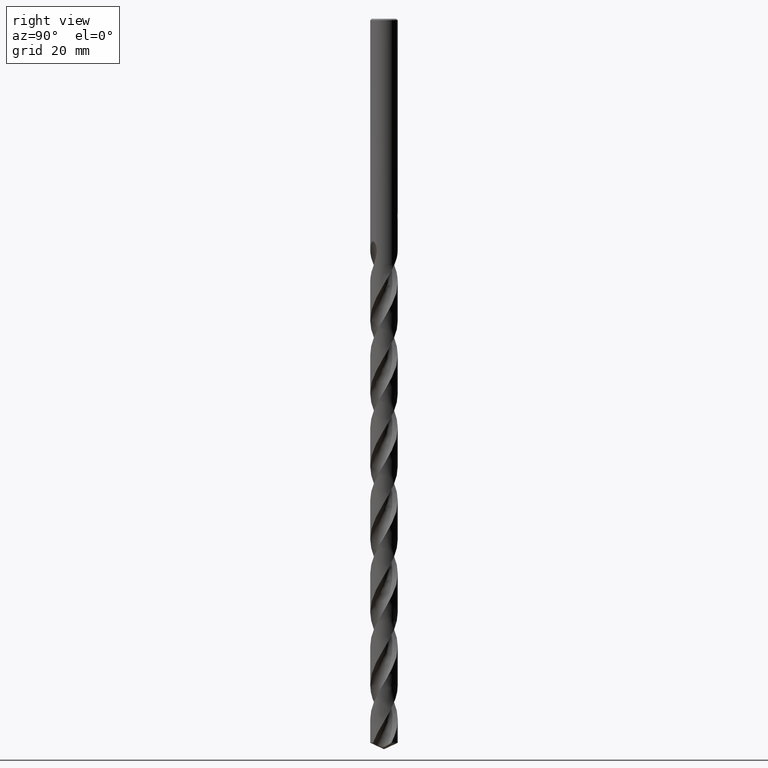
[diagram: clean part render]
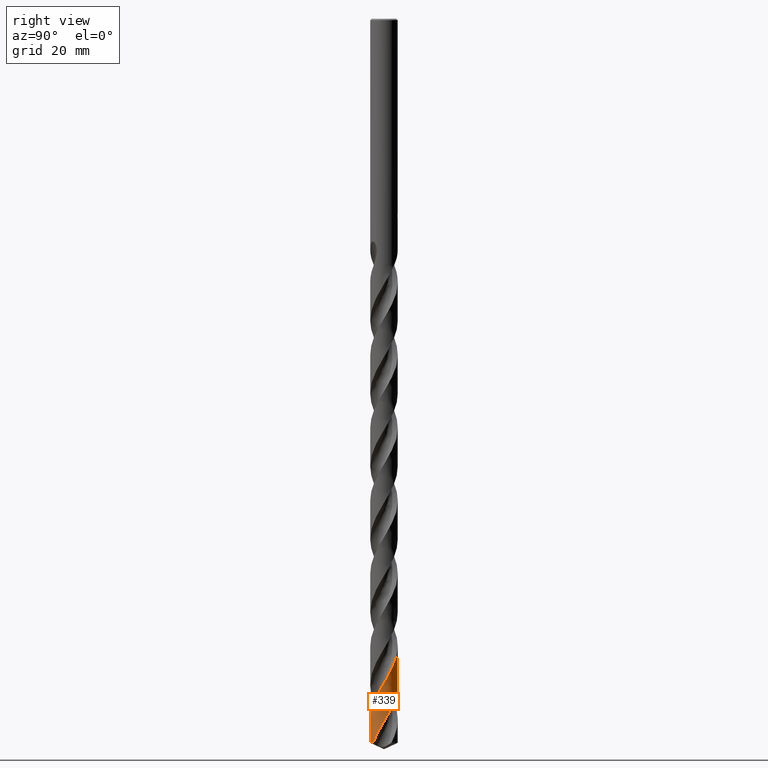
[diagram: same view with one face highlighted and labeled with its STEP entity id]
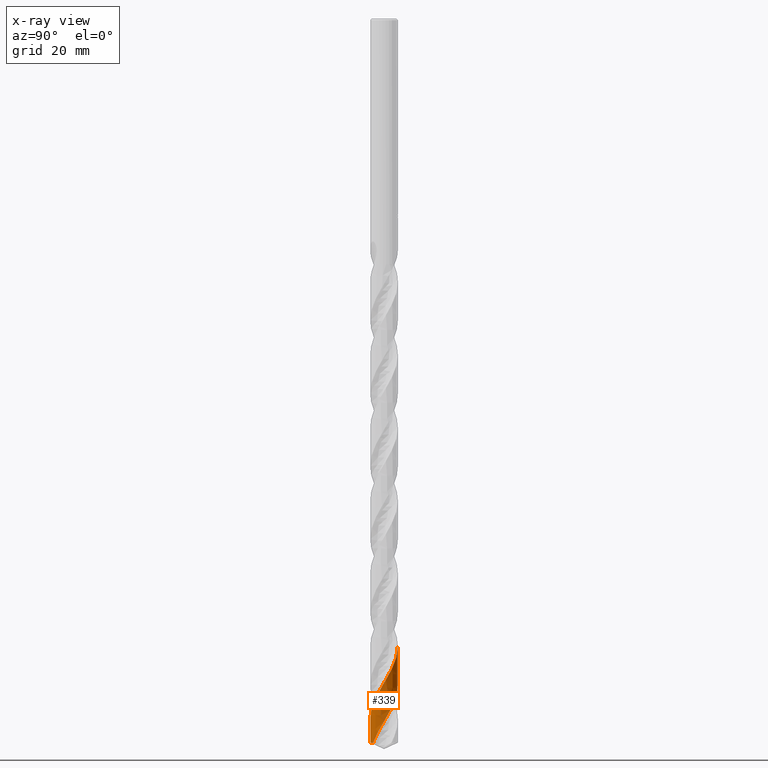
[diagram: x-ray of the same camera — body ghosted, the highlighted face saturated]
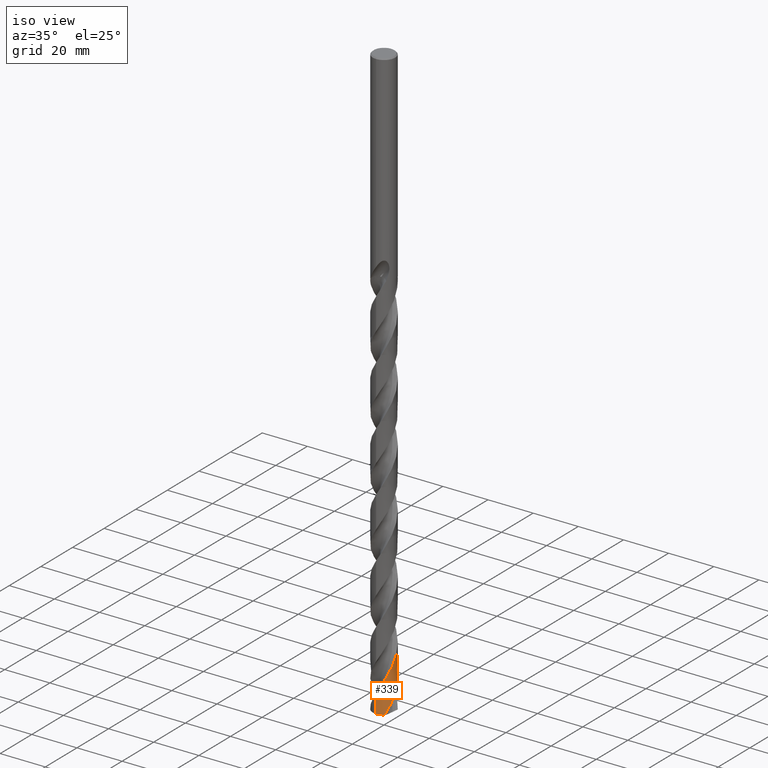
[diagram: same view with one face highlighted and labeled with its STEP entity id]
A machine part, right view. The second image highlights one B-rep face of the part: STEP entity #339.
The next image is the same camera in x-ray: the body ghosted, the highlighted face saturated — about 0% of this face is hidden behind the body in this view.
A second angle (iso view) of the same face is appended — the face is thin or edge-on in the first view.
In plain terms, the highlighted conical surface has half-angle 0 deg.
Its self-contained STEP definition (entity closure, byte-faithful):
#313=VERTEX_POINT('',#885);
#339=ADVANCED_FACE('',(#916),#917,.T.);
#347=EDGE_CURVE('',#663,#551,#925,.T.);
#349=EDGE_CURVE('',#625,#675,#927,.T.);
#389=EDGE_CURVE('',#625,#313,#969,.T.);
#483=EDGE_CURVE('',#663,#313,#1072,.T.);
#551=VERTEX_POINT('',#1148);
#625=VERTEX_POINT('',#1231);
#663=VERTEX_POINT('',#1271);
#675=VERTEX_POINT('',#1284);
#701=EDGE_CURVE('',#551,#675,#1312,.T.);
#885=CARTESIAN_POINT('',(-5.87392020568465E-013,4.99998793215063,-241.710413322431));
#916=FACE_OUTER_BOUND('',#4875,.T.);
#917=CONICAL_SURFACE('',#4876,4.99995,5.75809787312949E-007);
#925=CIRCLE('',#4903,5.0);
#927=B_SPLINE_CURVE_WITH_KNOTS('',3,(#4906,#4907,#4908,#4909,#4910,#4911,#4912,#4913,#4914,#4915,#4916,#4917,#4918,#4919,#4920,#4921,#4922,#4923,#4924,#4925,#4926,#4927,#4928,#4929,#4930,#4931,#4932,#4933,#4934,#4935,#4936,#4937,#4938,#4939,#4940,#4941,#4942,#4943,#4944,#4945,#4946,#4947,#4948,#4949,#4950,#4951,#4952,#4953,#4954,#4955,#4956,#4957,#4958,#4959,#4960,#4961,#4962,#4963,#4964,#4965,#4966,#4967,#4968,#4969,#4970,#4971,#4972,#4973,#4974,#4975,#4976,#4977,#4978,#4979,#4980,#4981,#4982,#4983,#4984,#4985,#4986,#4987,#4988,#4989,#4990,#4991,#4992,#4993,#4994,#4995,#4996,#4997,#4998,#4999,#5000,#5001,#5002,#5003,#5004,#5005,#5006,#5007,#5008,#5009,#5010,#5011,#5012,#5013,#5014,#5015,#5016,#5017,#5018,#5019,#5020,#5021,#5022,#5023,#5024,#5025,#5026,#5027,#5028,#5029,#5030,#5031,#5032,#5033,#5034,#5035,#5036,#5037,#5038,#5039,#5040,#5041,#5042,#5043,#5044,#5045,#5046,#5047,#5048,#5049,#5050,#5051,#5052,#5053,#5054,#5055,#5056,#5057,#5058,#5059,#5060,#5061,#5062,#5063,#5064,#5065,#5066,#5067,#5068,#5069,#5070,#5071,#5072,#5073,#5074,#5075,#5076,#5077,#5078,#5079,#5080,#5081,#5082,#5083,#5084,#5085,#5086,#5087,#5088,#5089,#5090,#5091,#5092,#5093,#5094,#5095,#5096,#5097,#5098,#5099,#5100,#5101,#5102,#5103,#5104,#5105,#5106,#5107,#5108,#5109,#5110,#5111,#5112,#5113,#5114,#5115,#5116,#5117,#5118,#5119,#5120,#5121,#5122,#5123,#5124,#5125,#5126,#5127,#5128,#5129,#5130,#5131,#5132,#5133,#5134,#5135,#5136,#5137,#5138,#5139,#5140,#5141,#5142,#5143,#5144,#5145,#5146,#5147,#5148,#5149,#5150,#5151,#5152,#5153,#5154,#5155,#5156,#5157,#5158,#5159,#5160,#5161,#5162,#5163,#5164,#5165,#5166,#5167,#5168,#5169,#5170,#5171,#5172,#5173,#5174,#5175,#5176,#5177,#5178,#5179,#5180,#5181,#5182,#5183,#5184,#5185,#5186,#5187,#5188,#5189,#5190,#5191,#5192,#5193,#5194,#5195,#5196,#5197,#5198,#5199,#5200,#5201,#5202,#5203,#5204,#5205,#5206,#5207,#5208,#5209,#5210,#5211),.UNSPECIFIED.,.F.,.F.,(4,2,2,2,2,2,2,2,2,2,2,2,2,2,2,2,2,2,2,2,2,2,2,2,2,2,2,2,2,2,2,2,2,2,2,2,2,2,2,2,2,2,2,2,2,2,2,2,2,2,2,2,2,2,2,2,2,2,2,2,2,2,2,2,2,2,2,2,2,2,2,2,2,2,2,2,2,2,2,2,2,2,2,2,2,2,2,2,2,2,2,2,2,2,2,2,2,2,2,2,2,2,2,2,2,2,2,2,2,2,2,2,2,2,2,2,2,2,2,2,2,2,2,2,2,2,2,2,2,2,2,2,2,2,2,2,2,2,2,2,2,2,2,2,2,2,2,2,2,2,2,2,4),(0.0,0.435718244669395,0.484115058358754,0.509547155672166,0.526948108052865,0.541206287881215,0.554756775117761,0.569361690210161,0.589321679638141,1.23088281591887,1.33036124792312,1.37777474453361,1.41498424339849,1.45565341487665,1.52114544487498,2.23945374253507,2.49490551552909,2.88014624343983,3.05234088393166,3.19027321112109,3.40695112636331,3.71450287752233,4.08795675222742,4.54635631762029,5.6154586405041,6.66358801104034,7.95430692856862,8.88074156269015,9.91010539370236,11.1951891797998,12.2696482439908,12.363952082922,13.8304381564295,14.7238366680834,15.9303035386406,18.1412035731552,19.0159523272185,21.2524735287823,21.6849867942879,23.3120654346752,24.0700652995132,25.0803370115881,27.048186096614,28.1235027824136,30.0531394477758,31.1905202843448,33.1533961631485,34.238585295826,36.1907352092983,37.2891483193302,39.2178325277,40.355858526431,42.3191103328568,43.4026693540429,45.3532242651398,46.45300489638,48.3816255742354,49.5187014856505,51.4820416487001,52.5643974165011,54.5133176604822,55.6145450368524,57.5431920454964,58.6791618008643,60.642504915263,61.7237804901362,63.6710477217583,64.7737666545098,66.702525281252,67.8372423045221,69.8005053352163,70.8808196599829,72.8264205301536,73.9306688504008,75.8596218246577,76.9929454212579,78.9560475791676,80.0355160325098,81.9794420687737,83.0852504914018,85.0144782377346,86.1462735020148,88.1091357249122,89.1878706648457,91.1301179931045,92.2375102075488,94.1670891904594,95.2972294603141,97.2597759128816,98.3378850879144,100.278455477358,101.387446807391,103.317450810369,104.445815596917,106.407972446904,107.485560625961,109.424460623151,110.535058712832,112.465557412411,113.592034971721,115.553731832232,116.630898841482,118.568140209571,119.680344247009,121.611403147042,122.735889986719,124.697058702968,125.773901363608,127.709501253891,128.823301901087,130.75498238407,131.877383638057,133.837959281179,134.914569876875,136.848550488797,137.96392950896,139.89628755998,141.016518646269,142.976439628191,144.052906179797,145.985294661805,147.102225246887,149.035311557212,150.15329761879,152.112504599725,153.188912015202,155.11974070463,156.238187223916,158.172046896295,159.287723297696,161.246161046282,162.322589140616,164.251892295722,165.371813229801,167.306492431198,168.419799194383,170.3773997645,171.453926600902,173.381736985084,174.503178285877,176.438989084359,177.54916554017,179.503943013977,180.584207849557,182.518687522359,183.626550062319,185.528823229327,186.697684240062,189.027023665197,189.428987736049,190.842674362714,191.752328624974,192.670301681998),.UNSPECIFIED.);
#969=LINE('',#6225,#6226);
#1072=B_SPLINE_CURVE_WITH_KNOTS('',3,(#9815,#9816,#9817,#9818,#9819,#9820,#9821,#9822,#9823,#9824,#9825,#9826,#9827,#9828,#9829,#9830,#9831,#9832,#9833,#9834,#9835,#9836,#9837,#9838,#9839,#9840,#9841,#9842,#9843,#9844,#9845,#9846,#9847,#9848,#9849,#9850,#9851,#9852,#9853,#9854,#9855,#9856,#9857,#9858,#9859,#9860,#9861,#9862,#9863,#9864,#9865,#9866,#9867,#9868,#9869,#9870,#9871,#9872,#9873,#9874,#9875,#9876,#9877,#9878,#9879,#9880,#9881,#9882,#9883,#9884,#9885,#9886,#9887,#9888,#9889,#9890,#9891,#9892,#9893,#9894,#9895,#9896,#9897,#9898,#9899,#9900,#9901,#9902,#9903,#9904,#9905,#9906,#9907,#9908,#9909,#9910,#9911,#9912,#9913,#9914,#9915,#9916,#9917,#9918,#9919,#9920,#9921,#9922,#9923,#9924,#9925,#9926,#9927,#9928,#9929,#9930,#9931,#9932,#9933,#9934,#9935,#9936,#9937,#9938,#9939,#9940,#9941,#9942,#9943,#9944,#9945,#9946,#9947,#9948,#9949,#9950,#9951,#9952,#9953,#9954,#9955,#9956,#9957,#9958,#9959,#9960,#9961,#9962,#9963,#9964,#9965,#9966,#9967,#9968,#9969,#9970,#9971,#9972,#9973,#9974,#9975,#9976,#9977,#9978,#9979,#9980,#9981,#9982,#9983,#9984,#9985,#9986,#9987,#9988,#9989,#9990,#9991,#9992,#9993,#9994,#9995,#9996,#9997,#9998,#9999,#10000,#10001,#10002,#10003,#10004,#10005,#10006,#10007,#10008,#10009,#10010,#10011,#10012,#10013,#10014,#10015,#10016,#10017,#10018,#10019,#10020,#10021,#10022,#10023,#10024,#10025,#10026,#10027,#10028,#10029,#10030,#10031,#10032,#10033,#10034,#10035,#10036,#10037,#10038,#10039,#10040,#10041,#10042,#10043,#10044,#10045,#10046,#10047,#10048,#10049,#10050,#10051,#10052,#10053,#10054,#10055,#10056,#10057,#10058,#10059,#10060,#10061,#10062,#10063,#10064,#10065,#10066,#10067,#10068,#10069,#10070,#10071,#10072,#10073,#10074,#10075,#10076,#10077,#10078,#10079,#10080,#10081,#10082,#10083,#10084,#10085,#10086,#10087,#10088,#10089,#10090,#10091,#10092,#10093,#10094,#10095,#10096,#10097,#10098,#10099,#10100,#10101,#10102,#10103,#10104,#10105,#10106,#10107,#10108,#10109,#10110,#10111,#10112),.UNSPECIFIED.,.F.,.F.,(4,2,2,2,2,2,2,2,2,2,2,2,2,2,2,2,2,2,2,2,2,2,2,2,2,2,2,2,2,2,2,2,2,2,2,2,2,2,2,2,2,2,2,2,2,2,2,2,2,2,2,2,2,2,2,2,2,2,2,2,2,2,2,2,2,2,2,2,2,2,2,2,2,2,2,2,2,2,2,2,2,2,2,2,2,2,2,2,2,2,2,2,2,2,2,2,2,2,2,2,2,2,2,2,2,2,2,2,2,2,2,2,2,2,2,2,2,2,2,2,2,2,2,2,2,2,2,2,2,2,2,2,2,2,2,2,2,2,2,2,2,2,2,2,2,2,2,2,4),(0.0,3.63092053248191,3.7691620184671,6.03348487665055,8.0469296444137,9.15530465158286,10.6858725973857,12.3223462129399,14.6102414959239,15.9651958078881,17.0891393279092,18.7346474536644,21.0373664522481,22.8707935806306,23.1939952154213,25.7825353407723,26.5593347333323,28.0407851094805,29.0085748083132,29.7708620923296,31.2488308606676,33.5406915438034,35.0406320416408,36.5310462128202,37.9115202322241,38.590179684919,39.3775294281662,40.8316956697733,41.5858751965656,42.6262510521607,44.1226818348683,46.5754515316867,47.6414510942108,49.9913822828124,51.5039628617097,52.2626833031142,53.7494600441074,55.0190745081184,55.1800763891425,57.57363837445,58.9840166639243,60.3745749894417,61.0956116948758,61.8881703917055,63.3432411834746,65.5898753520117,67.086220845805,68.3850911603997,69.9196985107638,72.7358457748535,73.6413968446596,75.0052332637271,76.3258413891122,78.5725063265606,80.0708949993093,81.5629012316738,83.1145427181494,85.489986877928,86.9362136758373,87.6938126543482,89.1850316896571,91.6811970772674,92.8109871587646,94.1846573257394,95.7403141464202,96.3746999956665,97.5214003578232,99.0794308170751,101.513364658178,102.932405976061,104.467571446549,106.629686497563,106.788899681004,109.197213874844,110.697348350723,112.104209896364,114.284201900323,115.339270466572,117.795484133206,118.731030565162,120.07509376705,121.706440431129,122.801450923436,122.879788960974,125.236096263122,126.706392577401,128.098291368499,130.737580022881,132.143977262708,132.87706205027,134.413429778621,136.74695391876,137.864965954265,140.162534753403,141.52396441993,142.933364300206,144.416862014505,145.671636411232,147.125399294215,148.045149393847,148.812672158692,151.533197267321,152.22664752454,153.835307301096,154.629364073175,155.374698356365,156.870973258538,157.607551531928,158.735363485831,160.07483495405,162.384287609561,163.889378589707,165.267048038706,166.59189438351,167.23348233804,168.37732797623,170.987607724718,171.313003659003,173.930602077886,174.693763401801,176.169113599196,178.477391666545,180.635091058613,180.96408692391,183.550264963447,184.338622818834,187.180907723722,187.259926042525,189.614008985541,190.86979194547,192.364668463624,194.621764592159,195.778551505454,197.663983594507,198.906554845058,199.454322903826,199.852651721785,200.162922504211,200.411371640628,200.681273317122,201.223370648177,201.892062888729,202.00496394292,202.056619043981,202.110331920396,202.190207229054,202.410570028968,202.741458202628,203.482240467201),.UNSPECIFIED.);
#1148=CARTESIAN_POINT('',(6.12434582620796E-016,-5.0,-262.668461709225));
#1231=CARTESIAN_POINT('',(1.37361570398355E-013,4.99997990477998,-227.769402236779));
#1271=CARTESIAN_POINT('',(3.03679725239329,-3.97213575395612,-262.668461709225));
#1284=CARTESIAN_POINT('',(-3.69058589505447E-015,-4.99999513779589,-254.224346619089));
#1312=LINE('',#15235,#15236);
#4875=EDGE_LOOP('',(#18348,#18349,#18350,#18351,#18352));
#4876=AXIS2_PLACEMENT_3D('',#18353,#18354,#18355);
#4903=AXIS2_PLACEMENT_3D('',#18357,#18358,#18359);
#4906=CARTESIAN_POINT('',(3.47531599367033,-3.59460412047406,-89.005));
#4907=CARTESIAN_POINT('',(3.42468505080907,-3.64355496048337,-89.1320228740223));
#4908=CARTESIAN_POINT('',(3.37260652015904,-3.69184736805829,-89.2594740710729));
#4909=CARTESIAN_POINT('',(3.31262006296057,-3.74507875848979,-89.4010412977107));
#4910=CARTESIAN_POINT('',(3.30660280408621,-3.75039263739465,-89.4151869292218));
#4911=CARTESIAN_POINT('',(3.29739019332052,-3.75848883023961,-89.4367588814987));
#4912=CARTESIAN_POINT('',(3.2942109629533,-3.76127566135513,-89.4441878551306));
#4913=CARTESIAN_POINT('',(3.28884637170604,-3.76596608634517,-89.4566972489798));
#4914=CARTESIAN_POINT('',(3.28666428269602,-3.76787061340008,-89.461778284632));
#4915=CARTESIAN_POINT('',(3.2826891079304,-3.77133405851845,-89.4710212872435));
#4916=CARTESIAN_POINT('',(3.28089698623593,-3.77289323456309,-89.4751834057166));
#4917=CARTESIAN_POINT('',(3.27739801450303,-3.7759330169186,-89.4833000321616));
#4918=CARTESIAN_POINT('',(3.27569138124003,-3.77741365216541,-89.487254511833));
#4919=CARTESIAN_POINT('',(3.27214176274624,-3.78048900045422,-89.4954701866396));
#4920=CARTESIAN_POINT('',(3.27029854167835,-3.78208358993438,-89.4997312101968));
#4921=CARTESIAN_POINT('',(3.26593154068283,-3.78585594309917,-89.5098142862626));
#4922=CARTESIAN_POINT('',(3.26340612419296,-3.78803307523917,-89.5156356353236));
#4923=CARTESIAN_POINT('',(3.1795833956911,-3.86014945625919,-89.7085348497046));
#4924=CARTESIAN_POINT('',(3.09606539736384,-3.92754428762329,-89.8905348282926));
#4925=CARTESIAN_POINT('',(2.99406802840642,-4.00435472958504,-90.1027749970556));
#4926=CARTESIAN_POINT('',(2.98029975899504,-4.01461280059634,-90.1312317362451));
#4927=CARTESIAN_POINT('',(2.95984708488408,-4.02968724056223,-90.1732416129147));
#4928=CARTESIAN_POINT('',(2.95322854175356,-4.03454030761687,-90.1867960154832));
#4929=CARTESIAN_POINT('',(2.9413846313767,-4.04318005872956,-90.2109833089656));
#4930=CARTESIAN_POINT('',(2.93616665414238,-4.04697097466353,-90.2216157839803));
#4931=CARTESIAN_POINT('',(2.92522384573826,-4.05488870076586,-90.2438662111532));
#4932=CARTESIAN_POINT('',(2.91949771157874,-4.05901345273001,-90.2554824212082));
#4933=CARTESIAN_POINT('',(2.90451921780007,-4.06975488483884,-90.2858011575224));
#4934=CARTESIAN_POINT('',(2.89525019561689,-4.07635419045684,-90.3044965333808));
#4935=CARTESIAN_POINT('',(2.78396691696282,-4.15501316092262,-90.5282219542068));
#4936=CARTESIAN_POINT('',(2.67842203072533,-4.22392869693471,-90.7349168664054));
#4937=CARTESIAN_POINT('',(2.52897783162553,-4.31339432793851,-91.0243988767072));
#4938=CARTESIAN_POINT('',(2.4897703220721,-4.33614372511131,-91.100034849256));
#4939=CARTESIAN_POINT('',(2.3899005341649,-4.39228119480821,-91.2921731682054));
#4940=CARTESIAN_POINT('',(2.32931224676066,-4.42470453348151,-91.4081391581215));
#4941=CARTESIAN_POINT('',(2.240984414397,-4.46966901323364,-91.5757629832152));
#4942=CARTESIAN_POINT('',(2.21358287559451,-4.48330256769873,-91.6275693501091));
#4943=CARTESIAN_POINT('',(2.16402990304662,-4.50739290297707,-91.7208568260873));
#4944=CARTESIAN_POINT('',(2.14191155712998,-4.51794548612654,-91.7623526008141));
#4945=CARTESIAN_POINT('',(2.08484764544166,-4.5446571914796,-91.8690337751966));
#4946=CARTESIAN_POINT('',(2.04978472238986,-4.56057923807943,-91.9342266618834));
#4947=CARTESIAN_POINT('',(1.96449771521501,-4.59812519450005,-92.0919138556615));
#4948=CARTESIAN_POINT('',(1.91406404707393,-4.61934798402862,-92.18442462772));
#4949=CARTESIAN_POINT('',(1.80154471309106,-4.66453401473775,-92.3891575033165));
#4950=CARTESIAN_POINT('',(1.73939285889947,-4.68806595255296,-92.5010989177027));
#4951=CARTESIAN_POINT('',(1.59972613281738,-4.73778133536421,-92.7506918332606));
#4952=CARTESIAN_POINT('',(1.52207634331719,-4.76329600688771,-92.888126096094));
#4953=CARTESIAN_POINT('',(1.26127415674301,-4.84195860591472,-93.3463389909712));
#4954=CARTESIAN_POINT('',(1.07579479482483,-4.88651162143243,-93.666705324545));
#4955=CARTESIAN_POINT('',(0.704466420663057,-4.95354929374693,-94.3019569687294));
#4956=CARTESIAN_POINT('',(0.519034952572111,-4.97638862514345,-94.6164792757356));
#4957=CARTESIAN_POINT('',(0.103635161065946,-5.00410655702882,-95.3184192028177));
#4958=CARTESIAN_POINT('',(-0.126526189708755,-5.00359360077357,-95.7051166724537));
#4959=CARTESIAN_POINT('',(-0.520681264878311,-4.97545945861971,-96.3701799156565));
#4960=CARTESIAN_POINT('',(-0.68467255598069,-4.95555402695594,-96.6478998959064));
#4961=CARTESIAN_POINT('',(-1.02811186114992,-4.89649595404717,-97.2346234376877));
#4962=CARTESIAN_POINT('',(-1.20694509553751,-4.85550370737473,-97.543265690245));
#4963=CARTESIAN_POINT('',(-1.60290960564482,-4.74152676950032,-98.2377731851978));
#4964=CARTESIAN_POINT('',(-1.81824013293763,-4.66320407641678,-98.6230465173785));
#4965=CARTESIAN_POINT('',(-2.20248629475921,-4.49274463603423,-99.3309281411584));
#4966=CARTESIAN_POINT('',(-2.3728879373549,-4.40512558217266,-99.6528602903973));
#4967=CARTESIAN_POINT('',(-2.55235406592298,-4.29939932430122,-100.003447975656));
#4968=CARTESIAN_POINT('',(-2.56678975647947,-4.29079669942349,-100.031732889042));
#4969=CARTESIAN_POINT('',(-2.80500790206596,-4.14720352937016,-100.499985029552));
#4970=CARTESIAN_POINT('',(-3.01785660512799,-3.99497802215493,-100.939853656626));
#4971=CARTESIAN_POINT('',(-3.33960071807181,-3.72444169829674,-101.648023219294));
#4972=CARTESIAN_POINT('',(-3.45647669019727,-3.61624044325564,-101.915927302173));
#4973=CARTESIAN_POINT('',(-3.71864527488798,-3.34917718033368,-102.545954014907));
#4974=CARTESIAN_POINT('',(-3.85916647834942,-3.18623454658211,-102.907330469468));
#4975=CARTESIAN_POINT('',(-4.22618177360809,-2.70065612751171,-103.932934000056));
#4976=CARTESIAN_POINT('',(-4.42578204629998,-2.35941855402472,-104.594325330555));
#4977=CARTESIAN_POINT('',(-4.64559345794185,-1.85522758763645,-105.520142312939));
#4978=CARTESIAN_POINT('',(-4.70116238643858,-1.70951617180535,-105.782439110804));
#4979=CARTESIAN_POINT('',(-4.87423568561183,-1.18305768988844,-106.716232652612));
#4980=CARTESIAN_POINT('',(-4.95302564464038,-0.790940476034934,-107.385237456259));
#4981=CARTESIAN_POINT('',(-4.99047033537448,-0.316639485412281,-108.186097820441));
#4982=CARTESIAN_POINT('',(-4.99475832851902,-0.2396682287855,-108.315821053268));
#4983=CARTESIAN_POINT('',(-5.00669694845837,0.127157115162214,-108.933952386339));
#4984=CARTESIAN_POINT('',(-4.99090215310496,0.417244784883828,-109.421938866309));
#4985=CARTESIAN_POINT('',(-4.93102733007694,0.83805674842551,-110.137805019045));
#4986=CARTESIAN_POINT('',(-4.90658295656277,0.970993596318862,-110.365179352087));
#4987=CARTESIAN_POINT('',(-4.83705084752248,1.27847773777952,-110.895841228175));
#4988=CARTESIAN_POINT('',(-4.78787681832418,1.45181298504637,-111.198683017993));
#4989=CARTESIAN_POINT('',(-4.6157429543346,1.95370648275283,-112.092691681028));
#4990=CARTESIAN_POINT('',(-4.46738953604283,2.27259002748456,-112.682076854112));
#4991=CARTESIAN_POINT('',(-4.18813217508779,2.73778151489139,-113.595414601079));
#4992=CARTESIAN_POINT('',(-4.08011988019107,2.89628642752509,-113.91770862786));
#4993=CARTESIAN_POINT('',(-3.75370693862269,3.3206994191267,-114.819849157965));
#4994=CARTESIAN_POINT('',(-3.51646638961983,3.57099331215135,-115.397939401646));
#4995=CARTESIAN_POINT('',(-3.10139426639849,3.92703934849748,-116.318528851191));
#4996=CARTESIAN_POINT('',(-2.93963289314322,4.04954243873366,-116.659404332781));
#4997=CARTESIAN_POINT('',(-2.47978749225722,4.35570401993196,-117.590238982826));
#4998=CARTESIAN_POINT('',(-2.16899177136567,4.51853503513263,-118.178253626965));
#4999=CARTESIAN_POINT('',(-1.66375627475837,4.71895491338405,-119.093223375372));
#5000=CARTESIAN_POINT('',(-1.47995421956931,4.77978145873637,-119.418529564868));
#5001=CARTESIAN_POINT('',(-0.957088160204656,4.91977554439966,-120.330545720266));
#5002=CARTESIAN_POINT('',(-0.612428163207067,4.97446660693887,-120.915417059826));
#5003=CARTESIAN_POINT('',(-0.0691618263915387,5.00327671534554,-121.83121210428));
#5004=CARTESIAN_POINT('',(0.126819763868364,5.00214265105093,-122.160490751673));
#5005=CARTESIAN_POINT('',(0.665200202025598,4.9673796556453,-123.069512086224));
#5006=CARTESIAN_POINT('',(1.0051565080022,4.90990640031287,-123.647466347464));
#5007=CARTESIAN_POINT('',(1.53219452943244,4.76369390989034,-124.568199562582));
#5008=CARTESIAN_POINT('',(1.72421811720659,4.697597542447,-124.90935509539));
#5009=CARTESIAN_POINT('',(2.23498770864036,4.48625576689312,-125.840734710471));
#5010=CARTESIAN_POINT('',(2.54351717522061,4.31883806095156,-126.429010179702));
#5011=CARTESIAN_POINT('',(2.99138180837388,4.01101104920169,-127.343837300011));
#5012=CARTESIAN_POINT('',(3.1441200984061,3.89243349302523,-127.668738961775));
#5013=CARTESIAN_POINT('',(3.55142315220303,3.53659648528963,-128.58002000359));
#5014=CARTESIAN_POINT('',(3.788793332307,3.28105820520891,-129.164565900644));
#5015=CARTESIAN_POINT('',(4.11558639532305,2.84599239383703,-130.080527493406));
#5016=CARTESIAN_POINT('',(4.22403259033517,2.68239179626889,-130.410299116052));
#5017=CARTESIAN_POINT('',(4.49536575645175,2.21565770618155,-131.319945104037));
#5018=CARTESIAN_POINT('',(4.63710815049464,1.90127562825379,-131.898027455184));
#5019=CARTESIAN_POINT('',(4.80935624665566,1.3822055326377,-132.818692105181));
#5020=CARTESIAN_POINT('',(4.86144613870929,1.18604055725243,-133.159650935502));
#5021=CARTESIAN_POINT('',(4.9705963860211,0.644169222499263,-134.091010096349));
#5022=CARTESIAN_POINT('',(5.00351718817399,0.29458331140008,-134.679461008804));
#5023=CARTESIAN_POINT('',(4.99746625211135,-0.248776251526814,-135.594187250126));
#5024=CARTESIAN_POINT('',(4.98413269165428,-0.441514259129486,-135.91881176806));
#5025=CARTESIAN_POINT('',(4.91571312665958,-0.977646454024007,-136.829473596496));
#5026=CARTESIAN_POINT('',(4.83589011363804,-1.31695531765035,-137.413682079881));
#5027=CARTESIAN_POINT('',(4.65679876079117,-1.83087902322228,-138.329822165094));
#5028=CARTESIAN_POINT('',(4.58128269130957,-2.01238526859163,-138.660110711605));
#5029=CARTESIAN_POINT('',(4.34475510085146,-2.49813268599989,-139.570432424545));
#5030=CARTESIAN_POINT('',(4.1626366283064,-2.79109099510648,-140.148669605013));
#5031=CARTESIAN_POINT('',(3.82762076336589,-3.22330692703915,-141.069245678172));
#5032=CARTESIAN_POINT('',(3.69385680326529,-3.37576085949004,-141.409960998412));
#5033=CARTESIAN_POINT('',(3.30478981605007,-3.76832292090247,-142.341227069775));
#5034=CARTESIAN_POINT('',(3.03278735215012,-3.99052322091449,-142.929828083553));
#5035=CARTESIAN_POINT('',(2.57827540308154,-4.28824518933102,-143.844464668724));
#5036=CARTESIAN_POINT('',(2.41093212953588,-4.38450819525158,-144.168848680241));
#5037=CARTESIAN_POINT('',(1.92795667634423,-4.62632855863864,-145.078922407254));
#5038=CARTESIAN_POINT('',(1.60194081357048,-4.74909406929018,-145.662787834109));
#5039=CARTESIAN_POINT('',(1.07532633129445,-4.88689451321964,-146.57911442763));
#5040=CARTESIAN_POINT('',(0.882224407153137,-4.92541343931412,-146.90993357054));
#5041=CARTESIAN_POINT('',(0.346660398762749,-4.99975122595034,-147.82097040336));
#5042=CARTESIAN_POINT('',(0.00180888171631771,-5.01177129699142,-148.399387814467));
#5043=CARTESIAN_POINT('',(-0.54370140123541,-4.97441002212733,-149.319856765284));
#5044=CARTESIAN_POINT('',(-0.744659752179434,-4.94831278744037,-149.66028457195));
#5045=CARTESIAN_POINT('',(-1.28733864389362,-4.84404306263563,-150.591388431516));
#5046=CARTESIAN_POINT('',(-1.62348895796891,-4.74198893526633,-151.180114892242));
#5047=CARTESIAN_POINT('',(-2.12393233625044,-4.5305035897463,-152.094672529528));
#5048=CARTESIAN_POINT('',(-2.29700813366347,-4.44525139726197,-152.418851470458));
#5049=CARTESIAN_POINT('',(-2.76666914527627,-4.17915994012893,-153.328368497208));
#5050=CARTESIAN_POINT('',(-3.05013281067707,-3.97702167071607,-153.911886706734));
#5051=CARTESIAN_POINT('',(-3.45816303954061,-3.61653812643185,-154.828407234209));
#5052=CARTESIAN_POINT('',(-3.59799500812649,-3.47744506488364,-155.15976856763));
#5053=CARTESIAN_POINT('',(-3.95845730167203,-3.07383046071395,-156.071557079563));
#5054=CARTESIAN_POINT('',(-4.16066624346536,-2.79407294415132,-156.650179382221));
#5055=CARTESIAN_POINT('',(-4.43355287573027,-2.32033253374629,-157.570523652463));
#5056=CARTESIAN_POINT('',(-4.52377491519302,-2.1390993662953,-157.910621668159));
#5057=CARTESIAN_POINT('',(-4.73956763105055,-1.63051623519437,-158.841496586602));
#5058=CARTESIAN_POINT('',(-4.84217079915312,-1.29446825943951,-159.430324491435));
#5059=CARTESIAN_POINT('',(-4.94542836468621,-0.761116326780574,-160.344813502882));
#5060=CARTESIAN_POINT('',(-4.97107801086566,-0.569998417118032,-160.668821771722));
#5061=CARTESIAN_POINT('',(-5.01185701486799,-0.0320508995436124,-161.577813919073));
#5062=CARTESIAN_POINT('',(-5.00202091344176,0.315752969805089,-162.160982198245));
#5063=CARTESIAN_POINT('',(-4.93015394283733,0.855569452327373,-163.077703417316));
#5064=CARTESIAN_POINT('',(-4.89253390214644,1.04951489405579,-163.409616413878));
#5065=CARTESIAN_POINT('',(-4.75813982796516,1.57418721491627,-164.322190360369));
#5066=CARTESIAN_POINT('',(-4.6384601264125,1.89810885807482,-164.901041549874));
#5067=CARTESIAN_POINT('',(-4.39714849670819,2.38859319536954,-165.821244617652));
#5068=CARTESIAN_POINT('',(-4.29704326229053,2.56430557552826,-166.160972265005));
#5069=CARTESIAN_POINT('',(-3.99510656287636,3.02676209103405,-167.091553724282));
#5070=CARTESIAN_POINT('',(-3.77322273551578,3.29926311221549,-167.680459567619));
#5071=CARTESIAN_POINT('',(-3.38792467660473,3.68219259570192,-168.594889895806));
#5072=CARTESIAN_POINT('',(-3.2435896127743,3.80994191051778,-168.918761015095));
#5073=CARTESIAN_POINT('',(-2.81988059812749,4.14341802870598,-169.82726060352));
#5074=CARTESIAN_POINT('',(-2.52580442873983,4.32898675006274,-170.410077605558));
#5075=CARTESIAN_POINT('',(-2.03745736891944,4.57026955094677,-171.32700554854));
#5076=CARTESIAN_POINT('',(-1.85515055250395,4.64725350219484,-171.659477584205));
#5077=CARTESIAN_POINT('',(-1.34414108496724,4.82818768580464,-172.572867443173));
#5078=CARTESIAN_POINT('',(-1.00832983150955,4.90933319421865,-173.151970354659));
#5079=CARTESIAN_POINT('',(-0.466671448941568,4.98221428860461,-174.072016975773));
#5080=CARTESIAN_POINT('',(-0.265228972164622,4.9969837603,-174.411336114004));
#5081=CARTESIAN_POINT('',(0.28681374181762,5.00399583248958,-175.341562998873));
#5082=CARTESIAN_POINT('',(0.636763289266516,4.97161449458777,-175.930524219172));
#5083=CARTESIAN_POINT('',(1.16940860321097,4.86508818036021,-176.844905399496));
#5084=CARTESIAN_POINT('',(1.35585685588765,4.81645166827218,-177.168671539327));
#5085=CARTESIAN_POINT('',(1.86861921592117,4.65057023832455,-178.076711225427));
#5086=CARTESIAN_POINT('',(2.1864021635561,4.50991809530043,-178.65917728218));
#5087=CARTESIAN_POINT('',(2.65904037001388,4.23890095293519,-179.576317165797));
#5088=CARTESIAN_POINT('',(2.82484514519895,4.1302517055296,-179.909353116539));
#5089=CARTESIAN_POINT('',(3.26023898239482,3.80645689650617,-180.823586066188));
#5090=CARTESIAN_POINT('',(3.5148551763261,3.57270704422672,-181.402962754672));
#5091=CARTESIAN_POINT('',(3.87709675012938,3.16359016644209,-182.322838725374));
#5092=CARTESIAN_POINT('',(4.00144468612608,3.0047585848672,-182.661713032503));
#5093=CARTESIAN_POINT('',(4.31477384308002,2.55049506459981,-183.591526642464));
#5094=CARTESIAN_POINT('',(4.48291702471621,2.24185974918733,-184.180521258595));
#5095=CARTESIAN_POINT('',(4.69128694915505,1.74024624712373,-185.094862540924));
#5096=CARTESIAN_POINT('',(4.75479382425671,1.55837123781115,-185.418555005327));
#5097=CARTESIAN_POINT('',(4.90275216953908,1.04041580866934,-186.326168011726));
#5098=CARTESIAN_POINT('',(4.96305135747638,0.698383154217165,-186.908284877162));
#5099=CARTESIAN_POINT('',(5.00149977521951,0.154785295381156,-187.825641047368));
#5100=CARTESIAN_POINT('',(5.00369808706138,-0.0437731722937002,-188.159243491716));
#5101=CARTESIAN_POINT('',(4.97742449477559,-0.586248367563805,-189.074343184072));
#5102=CARTESIAN_POINT('',(4.92516473447241,-0.928097329552744,-189.654014498237));
#5103=CARTESIAN_POINT('',(4.78727683223615,-1.45674123305207,-190.573707000948));
#5104=CARTESIAN_POINT('',(4.72476589963854,-1.64822741013494,-190.912102746134));
#5105=CARTESIAN_POINT('',(4.52229847532505,-2.16128851811733,-191.841448005681));
#5106=CARTESIAN_POINT('',(4.35973233224188,-2.47290666185153,-192.43045504659));
#5107=CARTESIAN_POINT('',(4.05936268868857,-2.92544738739356,-193.344765237577));
#5108=CARTESIAN_POINT('',(3.94375595970486,-3.07951485588163,-193.668413875506));
#5109=CARTESIAN_POINT('',(3.59629786619641,-3.49084367677276,-194.575633532333));
#5110=CARTESIAN_POINT('',(3.34607391649565,-3.73139528402978,-195.157404514639));
#5111=CARTESIAN_POINT('',(2.91608357135269,-4.06639850965667,-196.074980343698));
#5112=CARTESIAN_POINT('',(2.75216640310003,-4.17907553823242,-196.409149327726));
#5113=CARTESIAN_POINT('',(2.28662718868207,-4.45981563057221,-197.325135631108));
#5114=CARTESIAN_POINT('',(1.97346925144312,-4.60697399821482,-197.905121192545));
#5115=CARTESIAN_POINT('',(1.45775888384554,-4.78695923617949,-198.824618628985));
#5116=CARTESIAN_POINT('',(1.26421598888545,-4.84166806785925,-199.162504526976));
#5117=CARTESIAN_POINT('',(0.725679895692129,-4.95941376325871,-200.091329474315));
#5118=CARTESIAN_POINT('',(0.376345449376125,-4.99809384551956,-200.680328618016));
#5119=CARTESIAN_POINT('',(-0.16678770622775,-5.00088931940559,-201.594616297866));
#5120=CARTESIAN_POINT('',(-0.359130739139111,-4.99076068033793,-201.918250081909));
#5121=CARTESIAN_POINT('',(-0.894088311323018,-4.93151702352294,-202.825110460871));
#5122=CARTESIAN_POINT('',(-1.23307353018541,-4.85787575205264,-203.406540474667));
#5123=CARTESIAN_POINT('',(-1.7510092954297,-4.68756739198484,-204.324338389572));
#5124=CARTESIAN_POINT('',(-1.93623214192115,-4.61413898947677,-204.65907140312));
#5125=CARTESIAN_POINT('',(-2.42924525122904,-4.38378514243534,-205.575960391551));
#5126=CARTESIAN_POINT('',(-2.72610276056918,-4.20563190944636,-206.156278607217));
#5127=CARTESIAN_POINT('',(-3.16278871198939,-3.87772172444956,-207.075570725601));
#5128=CARTESIAN_POINT('',(-3.31581639016279,-3.74770223930563,-207.412918051166));
#5129=CARTESIAN_POINT('',(-3.71346128808878,-3.36639836228832,-208.341174255026));
#5130=CARTESIAN_POINT('',(-3.94025022327202,-3.09790939479794,-208.930146126024));
#5131=CARTESIAN_POINT('',(-4.24525493236611,-2.64850397366668,-209.844419487228));
#5132=CARTESIAN_POINT('',(-4.34404143382556,-2.48314753009142,-210.168066053833));
#5133=CARTESIAN_POINT('',(-4.59289113060302,-2.00611914055946,-211.074601406388));
#5134=CARTESIAN_POINT('',(-4.7206055861183,-1.68381071669824,-211.655696873696));
#5135=CARTESIAN_POINT('',(-4.86793845312306,-1.1587394813385,-212.573718141885));
#5136=CARTESIAN_POINT('',(-4.91026856688832,-0.963699315998769,-212.909010004334));
#5137=CARTESIAN_POINT('',(-4.99379719661766,-0.425425178771678,-213.826813458287));
#5138=CARTESIAN_POINT('',(-5.01127306448422,-0.0794422826576953,-214.407481140628));
#5139=CARTESIAN_POINT('',(-4.98226282600315,0.465755231647677,-215.326559154942));
#5140=CARTESIAN_POINT('',(-4.95960486190121,0.664938166220649,-215.663342243152));
#5141=CARTESIAN_POINT('',(-4.86466957546864,1.20724949737624,-216.590985338901));
#5142=CARTESIAN_POINT('',(-4.76813700431115,1.54515780815727,-217.179911542975));
#5143=CARTESIAN_POINT('',(-4.56497488903697,2.0488591155608,-218.094178506043));
#5144=CARTESIAN_POINT('',(-4.48272128192627,2.22305739346024,-218.417864236111));
#5145=CARTESIAN_POINT('',(-4.22540257025719,2.69537535265597,-219.324109045333));
#5146=CARTESIAN_POINT('',(-4.02908842600679,2.98088810834761,-219.904877866703));
#5147=CARTESIAN_POINT('',(-3.67518471393752,3.39598262938198,-220.823122662368));
#5148=CARTESIAN_POINT('',(-3.5366046665175,3.54006494648429,-221.158965617955));
#5149=CARTESIAN_POINT('',(-3.13578602450751,3.90973679488655,-222.077691148606));
#5150=CARTESIAN_POINT('',(-2.85804354910147,4.11715376109516,-222.65872354344));
#5151=CARTESIAN_POINT('',(-2.38924409451882,4.39673638662129,-223.577579995924));
#5152=CARTESIAN_POINT('',(-2.21153422903984,4.48874671267404,-223.913776077108));
#5153=CARTESIAN_POINT('',(-1.70869199984252,4.71199049015311,-224.840765273034));
#5154=CARTESIAN_POINT('',(-1.37436174531726,4.82014462096978,-225.429628071784));
#5155=CARTESIAN_POINT('',(-0.842910935863919,4.93217833125463,-226.343896302008));
#5156=CARTESIAN_POINT('',(-0.652393754269455,4.96096957573424,-226.667646664168));
#5157=CARTESIAN_POINT('',(-0.116969315477026,5.01051988965564,-227.573636063302));
#5158=CARTESIAN_POINT('',(0.22930938219055,5.00665362181962,-228.154087690987));
#5159=CARTESIAN_POINT('',(0.771335294214771,4.94417829610159,-229.072555090112));
#5160=CARTESIAN_POINT('',(0.968517832714096,4.90935657224914,-229.408938729855));
#5161=CARTESIAN_POINT('',(1.49936017284053,4.78239682405949,-230.328589609927));
#5162=CARTESIAN_POINT('',(1.82656510513085,4.66725110886307,-230.910000306799));
#5163=CARTESIAN_POINT('',(2.31979449076346,4.43376078111751,-231.828629129774));
#5164=CARTESIAN_POINT('',(2.49490060061702,4.33763815814458,-232.164218481279));
#5165=CARTESIAN_POINT('',(2.9601487971317,4.0447516842257,-233.090517270844));
#5166=CARTESIAN_POINT('',(3.23623703223044,3.82745979897885,-233.679300137386));
#5167=CARTESIAN_POINT('',(3.62545039604334,3.44863152484588,-234.5935770077));
#5168=CARTESIAN_POINT('',(3.75556835186716,3.306449920133,-234.917415964068));
#5169=CARTESIAN_POINT('',(4.09501631037092,2.88959395650263,-235.823184154299));
#5170=CARTESIAN_POINT('',(4.28469887690605,2.60008439610825,-236.403328614645));
#5171=CARTESIAN_POINT('',(4.53500525628883,2.11512605671394,-237.322016489417));
#5172=CARTESIAN_POINT('',(4.61611136803187,1.93170863024182,-237.658928622617));
#5173=CARTESIAN_POINT('',(4.80668123537257,1.41965707610956,-238.57950667249));
#5174=CARTESIAN_POINT('',(4.89343232769396,1.08356076142859,-239.161309601058));
#5175=CARTESIAN_POINT('',(4.9742962137425,0.544019460663109,-240.079706456573));
#5176=CARTESIAN_POINT('',(4.99201487118713,0.345427756824771,-240.414670757661));
#5177=CARTESIAN_POINT('',(5.00809571457367,-0.20366694314069,-241.340240169626));
#5178=CARTESIAN_POINT('',(4.98154906986108,-0.55394335251321,-241.928922714654));
#5179=CARTESIAN_POINT('',(4.88392773369015,-1.08824321456862,-242.84321120059));
#5180=CARTESIAN_POINT('',(4.83837369456273,-1.27558538546544,-243.16716212564));
#5181=CARTESIAN_POINT('',(4.68145583727539,-1.7896389317674,-244.072742400635));
#5182=CARTESIAN_POINT('',(4.54686717733687,-2.10831833587768,-244.6525895011));
#5183=CARTESIAN_POINT('',(4.28367387483757,-2.58657037943091,-245.571521808));
#5184=CARTESIAN_POINT('',(4.17640777204032,-2.75640667271859,-245.908976815454));
#5185=CARTESIAN_POINT('',(3.85704877786842,-3.20047414607869,-246.830590184244));
#5186=CARTESIAN_POINT('',(3.62608767568306,-3.45998875124118,-247.412877818276));
#5187=CARTESIAN_POINT('',(3.22322646060419,-3.82756269477721,-248.330906653913));
#5188=CARTESIAN_POINT('',(3.06859023823459,-3.95261075484821,-248.66501612075));
#5189=CARTESIAN_POINT('',(2.62239592253618,-4.27145166543512,-249.589028455052));
#5190=CARTESIAN_POINT('',(2.31715557201498,-4.44446058868933,-250.177020879656));
#5191=CARTESIAN_POINT('',(1.81890154675899,-4.66143168245766,-251.091821611513));
#5192=CARTESIAN_POINT('',(1.63729019876212,-4.72827494732831,-251.416980468475));
#5193=CARTESIAN_POINT('',(1.12107588081076,-4.88497285376058,-252.325928109341));
#5194=CARTESIAN_POINT('',(0.780159356924582,-4.95088848108347,-252.90790509972));
#5195=CARTESIAN_POINT('',(0.237425360747556,-4.99829331230783,-253.824983199474));
#5196=CARTESIAN_POINT('',(0.0390138202784723,-5.0037720720925,-254.158437766709));
#5197=CARTESIAN_POINT('',(-0.499391945016804,-4.98662716665117,-255.066089715499));
#5198=CARTESIAN_POINT('',(-0.837773016857898,-4.9410668535066,-255.638537606247));
#5199=CARTESIAN_POINT('',(-1.37250278937701,-4.81248528067003,-256.564405710441));
#5200=CARTESIAN_POINT('',(-1.57268585646874,-4.75083093811615,-256.916247846196));
#5201=CARTESIAN_POINT('',(-2.15834595155171,-4.52938588622191,-257.971110150686));
#5202=CARTESIAN_POINT('',(-2.52849048686598,-4.33367850788707,-258.67073897708));
#5203=CARTESIAN_POINT('',(-2.92906332471625,-4.05286972134473,-259.494147888926));
#5204=CARTESIAN_POINT('',(-2.98709411996589,-4.01029042394937,-259.615285130471));
#5205=CARTESIAN_POINT('',(-3.24494454905531,-3.81239669131271,-260.162836509063));
#5206=CARTESIAN_POINT('',(-3.43370231225705,-3.64330956135673,-260.589082794244));
#5207=CARTESIAN_POINT('',(-3.7215325792889,-3.34315685691922,-261.289844453653));
#5208=CARTESIAN_POINT('',(-3.82845914695195,-3.2201620012793,-261.563997251035));
#5209=CARTESIAN_POINT('',(-4.0309115018205,-2.96290165144882,-262.115098490878));
#5210=CARTESIAN_POINT('',(-4.12617396111634,-2.82873388211762,-262.391676481445));
#5211=CARTESIAN_POINT('',(-4.21465926898946,-2.69010171672398,-262.668461709225));
#6225=CARTESIAN_POINT('',(-6.12165648169813E-016,4.99995,-175.834230854612));
#6226=VECTOR('',#18390,1.0);
#9815=CARTESIAN_POINT('',(3.03679725239329,-3.97213575395612,-262.668461709225));
#9816=CARTESIAN_POINT('',(3.52684900053038,-3.59747816609057,-261.627153093576));
#9817=CARTESIAN_POINT('',(3.94248477536741,-3.13609300664103,-260.60778213217));
#9818=CARTESIAN_POINT('',(4.27596659826116,-2.59164810724516,-259.527929359572));
#9819=CARTESIAN_POINT('',(4.28803581695184,-2.57162945997533,-259.488357998234));
#9820=CARTESIAN_POINT('',(4.49556431567559,-2.22188704805663,-258.800390287791));
#9821=CARTESIAN_POINT('',(4.6529224461154,-1.87036089099153,-258.158315731614));
#9822=CARTESIAN_POINT('',(4.87144133905287,-1.17729277840814,-256.9355924767));
#9823=CARTESIAN_POINT('',(4.94054501574536,-0.841472529316061,-256.35830108257));
#9824=CARTESIAN_POINT('',(4.99370751013422,-0.313573823249625,-255.466061096519));
#9825=CARTESIAN_POINT('',(5.00197407816321,-0.1252425680951,-255.150006935315));
#9826=CARTESIAN_POINT('',(4.99631559683138,0.323153473249027,-254.395766751147));
#9827=CARTESIAN_POINT('',(4.97275487728657,0.582225352931965,-253.956790880425));
#9828=CARTESIAN_POINT('',(4.88276567653834,1.11153551822427,-253.051722542234));
#9829=CARTESIAN_POINT('',(4.81355335539646,1.38088878218298,-252.586501787028));
#9830=CARTESIAN_POINT('',(4.59455338748823,2.01020490116651,-251.465827342495));
#9831=CARTESIAN_POINT('',(4.42462729248939,2.36083961806752,-250.810520701846));
#9832=CARTESIAN_POINT('',(4.09199524366141,2.88243766416769,-249.770330008639));
#9833=CARTESIAN_POINT('',(3.95511184395409,3.06754154408989,-249.384713816806));
#9834=CARTESIAN_POINT('',(3.68250003173209,3.38754214522923,-248.676565753594));
#9835=CARTESIAN_POINT('',(3.55085951436434,3.52527826501567,-248.354487464593));
#9836=CARTESIAN_POINT('',(3.20778837358346,3.84548498652609,-247.563432722628));
#9837=CARTESIAN_POINT('',(2.98824810932144,4.01849171914976,-247.095891120976));
#9838=CARTESIAN_POINT('',(2.42907980786266,4.38773381475704,-245.968966436169));
#9839=CARTESIAN_POINT('',(2.07897592493062,4.56404733719326,-245.309747604072));
#9840=CARTESIAN_POINT('',(1.41934163223292,4.80439468775879,-244.129284799316));
#9841=CARTESIAN_POINT('',(1.11817342190909,4.88320653948423,-243.609145428385));
#9842=CARTESIAN_POINT('',(0.758317620584911,4.94245165062949,-242.992866617147));
#9843=CARTESIAN_POINT('',(0.704251990693594,4.95044629798671,-242.900433810352));
#9844=CARTESIAN_POINT('',(0.214727623276179,5.01462025655013,-242.066736351297));
#9845=CARTESIAN_POINT('',(-0.226119043530752,5.01414293545558,-241.334973736004));
#9846=CARTESIAN_POINT('',(-0.792079420933305,4.93860828613344,-240.372189503131));
#9847=CARTESIAN_POINT('',(-0.921806281574668,4.9160439911743,-240.1494715437));
#9848=CARTESIAN_POINT('',(-1.29612853601021,4.83559749634794,-239.503540470171));
#9849=CARTESIAN_POINT('',(-1.53766844494301,4.7643319029194,-239.081643928868));
#9850=CARTESIAN_POINT('',(-1.92695322197892,4.61668454483499,-238.381843295245));
#9851=CARTESIAN_POINT('',(-2.07761163649756,4.55085917458434,-238.105724709869));
#9852=CARTESIAN_POINT('',(-2.34034121785875,4.42033558567147,-237.610972536249));
#9853=CARTESIAN_POINT('',(-2.45368292152409,4.35843832256522,-237.392515302428));
#9854=CARTESIAN_POINT('',(-2.77960662233383,4.16369771196052,-236.751950707281));
#9855=CARTESIAN_POINT('',(-2.98493907330163,4.01908708162031,-236.331184133773));
#9856=CARTESIAN_POINT('',(-3.4794024645906,3.61182352751185,-235.254437576519));
#9857=CARTESIAN_POINT('',(-3.74985225988296,3.33014236604486,-234.598059108373));
#9858=CARTESIAN_POINT('',(-4.13868758342092,2.81708113427126,-233.514629911937));
#9859=CARTESIAN_POINT('',(-4.27675524905171,2.6026955833841,-233.087890268728));
#9860=CARTESIAN_POINT('',(-4.51825375055626,2.15620430655572,-232.233503596708));
#9861=CARTESIAN_POINT('',(-4.62144350584408,1.92509739196578,-231.806125528175));
#9862=CARTESIAN_POINT('',(-4.78576428403846,1.46666750442723,-230.985891891226));
#9863=CARTESIAN_POINT('',(-4.84923840400723,1.2408330986814,-230.592955863857));
#9864=CARTESIAN_POINT('',(-4.91996428893848,0.898358144747401,-230.004952548974));
#9865=CARTESIAN_POINT('',(-4.93934127214079,0.784824415442242,-229.8112673705));
#9866=CARTESIAN_POINT('',(-4.97267809891112,0.538599079345096,-229.392338592288));
#9867=CARTESIAN_POINT('',(-4.98526189782899,0.405880206264639,-229.166840042601));
#9868=CARTESIAN_POINT('',(-5.00596484469284,0.0269631410384366,-228.526521773652));
#9869=CARTESIAN_POINT('',(-5.00124162868938,-0.219831928044886,-228.112867281383));
#9870=CARTESIAN_POINT('',(-4.96632862222245,-0.593101914564319,-227.482733120135));
#9871=CARTESIAN_POINT('',(-4.9495219443427,-0.719981678702393,-227.267722341516));
#9872=CARTESIAN_POINT('',(-4.89804995193001,-1.01980573469632,-226.75539953996));
#9873=CARTESIAN_POINT('',(-4.85908007734329,-1.19167867345868,-226.457517524418));
#9874=CARTESIAN_POINT('',(-4.74228326059205,-1.60455628608286,-225.733652482255));
#9875=CARTESIAN_POINT('',(-4.65491095063018,-1.8428196908748,-225.308539736953));
#9876=CARTESIAN_POINT('',(-4.37715409536052,-2.45220396068134,-224.182859801159));
#9877=CARTESIAN_POINT('',(-4.15820566336781,-2.80748639151029,-223.481945441659));
#9878=CARTESIAN_POINT('',(-3.78460511742851,-3.27248946855388,-222.478666277347));
#9879=CARTESIAN_POINT('',(-3.66387001594869,-3.40712201478949,-222.175385563045));
#9880=CARTESIAN_POINT('',(-3.25446463969548,-3.81666345364789,-221.201478799643));
#9881=CARTESIAN_POINT('',(-2.94027404553087,-4.0636562932162,-220.529591750792));
#9882=CARTESIAN_POINT('',(-2.38086894323426,-4.40420125936429,-219.42850012411));
#9883=CARTESIAN_POINT('',(-2.15212085892136,-4.52035256786608,-218.999057333606));
#9884=CARTESIAN_POINT('',(-1.7972447773613,-4.66756115286884,-218.351064009222));
#9885=CARTESIAN_POINT('',(-1.67699885482708,-4.7120991623359,-218.134148679082));
#9886=CARTESIAN_POINT('',(-1.31612453659973,-4.83019279298167,-217.493551610289));
#9887=CARTESIAN_POINT('',(-1.07133345486789,-4.89034979651474,-217.071253423025));
#9888=CARTESIAN_POINT('',(-0.610381642810766,-4.96724274082002,-216.285759531477));
#9889=CARTESIAN_POINT('',(-0.396425928676789,-4.98884142759039,-215.924871175926));
#9890=CARTESIAN_POINT('',(-0.155013423565041,-4.99764328951071,-215.516602325224));
#9891=CARTESIAN_POINT('',(-0.127865799887101,-4.99841165258916,-215.470669986507));
#9892=CARTESIAN_POINT('',(0.303806896638734,-5.00710343673909,-214.741051363192));
#9893=CARTESIAN_POINT('',(0.708166128933562,-4.96615262324323,-214.06481631168));
#9894=CARTESIAN_POINT('',(1.33674542113703,-4.82389088197576,-212.979897654434));
#9895=CARTESIAN_POINT('',(1.56545973096618,-4.75458163669201,-212.576199219534));
#9896=CARTESIAN_POINT('',(2.00822687428889,-4.58499074985078,-211.777392478626));
#9897=CARTESIAN_POINT('',(2.22196997577965,-4.48532283790722,-211.382323571386));
#9898=CARTESIAN_POINT('',(2.53488592141214,-4.31149563844671,-210.780483343392));
#9899=CARTESIAN_POINT('',(2.63941422187165,-4.24830219262377,-210.57511666558));
#9900=CARTESIAN_POINT('',(2.8535525413225,-4.10790853558509,-210.143404068767));
#9901=CARTESIAN_POINT('',(2.96252618938343,-4.03002123208714,-209.916838962555));
#9902=CARTESIAN_POINT('',(3.26240872115043,-3.79695111120396,-209.27598394675));
#9903=CARTESIAN_POINT('',(3.44540692503426,-3.63175615106914,-208.86284489535));
#9904=CARTESIAN_POINT('',(3.87864369534157,-3.1781646779032,-207.808585237795));
#9905=CARTESIAN_POINT('',(4.10909493684658,-2.87395002410798,-207.167148783156));
#9906=CARTESIAN_POINT('',(4.4317520088653,-2.32881526929892,-206.10071198543));
#9907=CARTESIAN_POINT('',(4.54401565731064,-2.10137307377957,-205.676205116089));
#9908=CARTESIAN_POINT('',(4.72065738655237,-1.66235237670808,-204.87998720161));
#9909=CARTESIAN_POINT('',(4.78907910492379,-1.45342836074511,-204.50884247842));
#9910=CARTESIAN_POINT('',(4.90779237021549,-0.990117853328076,-203.702076757129));
#9911=CARTESIAN_POINT('',(4.95256491182284,-0.734290501817078,-203.267150676236));
#9912=CARTESIAN_POINT('',(5.02261911304886,-0.00146848958383272,-202.029638188285));
#9913=CARTESIAN_POINT('',(4.99993557842148,0.476814337909743,-201.227502048958));
#9914=CARTESIAN_POINT('',(4.8809469770806,1.095205276557,-200.169034694135));
#9915=CARTESIAN_POINT('',(4.84510864402533,1.2441823441639,-199.911854137571));
#9916=CARTESIAN_POINT('',(4.73837629335736,1.61262780324162,-199.266200931251));
#9917=CARTESIAN_POINT('',(4.65908746874491,1.82908074139639,-198.876831838329));
#9918=CARTESIAN_POINT('',(4.47427141597245,2.24281447657019,-198.113185403572));
#9919=CARTESIAN_POINT('',(4.36976436548505,2.44021720121782,-197.738806997748));
#9920=CARTESIAN_POINT('',(4.05243109134547,2.95326417333008,-196.72477763016));
#9921=CARTESIAN_POINT('',(3.81656509566927,3.25231187874656,-196.084271973013));
#9922=CARTESIAN_POINT('',(3.37088563591644,3.7014633137364,-195.019350719734));
#9923=CARTESIAN_POINT('',(3.17919737438973,3.86734878271623,-194.595086645436));
#9924=CARTESIAN_POINT('',(2.77323052910318,4.16801216361831,-193.744807198474));
#9925=CARTESIAN_POINT('',(2.55985947113351,4.30234146418437,-193.319027248923));
#9926=CARTESIAN_POINT('',(2.10570300314564,4.54248871382372,-192.453635184526));
#9927=CARTESIAN_POINT('',(1.86481521925579,4.64658849198133,-192.014503104806));
#9928=CARTESIAN_POINT('',(1.23695507082424,4.86113224961212,-190.8984677664));
#9929=CARTESIAN_POINT('',(0.843007834368305,4.94470594520506,-190.221656601147));
#9930=CARTESIAN_POINT('',(0.199618468041548,5.00194752921614,-189.135814827536));
#9931=CARTESIAN_POINT('',(-0.0448204222944823,5.00569856336303,-188.726398138613));
#9932=CARTESIAN_POINT('',(-0.415760615102553,4.98427812137683,-188.099702759341));
#9933=CARTESIAN_POINT('',(-0.542790863090992,4.97204701705413,-187.883815257921));
#9934=CARTESIAN_POINT('',(-0.918400154838108,4.9213082937374,-187.244356972072));
#9935=CARTESIAN_POINT('',(-1.16488705923295,4.86889128787819,-186.822176386727));
#9936=CARTESIAN_POINT('',(-1.81147893045852,4.67931926369002,-185.689579208432));
#9937=CARTESIAN_POINT('',(-2.1994129274682,4.50998295640481,-184.978797252236));
#9938=CARTESIAN_POINT('',(-2.72545328389866,4.19617406081665,-183.94855404414));
#9939=CARTESIAN_POINT('',(-2.8836145464447,4.08909885330291,-183.628317762754));
#9940=CARTESIAN_POINT('',(-3.21964385634837,3.83239754191208,-182.917012110208));
#9941=CARTESIAN_POINT('',(-3.3937601873658,3.67905361523623,-182.525516435327));
#9942=CARTESIAN_POINT('',(-3.74048406122019,3.32820281229554,-181.693536041824));
#9943=CARTESIAN_POINT('',(-3.90989035879736,3.12749596146366,-181.253781463313));
#9944=CARTESIAN_POINT('',(-4.12532971768707,2.82712701022357,-180.632388811059));
#9945=CARTESIAN_POINT('',(-4.18487907052526,2.7382010411159,-180.452487934801));
#9946=CARTESIAN_POINT('',(-4.34382408162023,2.48355903256002,-179.946869394045));
#9947=CARTESIAN_POINT('',(-4.43644333846118,2.31403600290761,-179.6203060594));
#9948=CARTESIAN_POINT('',(-4.63129814184354,1.90247184485424,-178.852615128618));
#9949=CARTESIAN_POINT('',(-4.72481007567007,1.65672731603904,-178.412475429145));
#9950=CARTESIAN_POINT('',(-4.91395099034363,1.01051065072561,-177.280352522483));
#9951=CARTESIAN_POINT('',(-4.98028770855108,0.603964301753421,-176.588165277944));
#9952=CARTESIAN_POINT('',(-5.00546922943743,-0.0454250765816334,-175.495459840057));
#9953=CARTESIAN_POINT('',(-4.99754994085552,-0.284757242834248,-175.094455867427));
#9954=CARTESIAN_POINT('',(-4.94557549678206,-0.779485305327184,-174.256191203304));
#9955=CARTESIAN_POINT('',(-4.89865357053204,-1.0342834797684,-173.8189687339));
#9956=CARTESIAN_POINT('',(-4.7384216286295,-1.63702851672376,-172.769602871577));
#9957=CARTESIAN_POINT('',(-4.60659407279148,-1.97758542738244,-172.16107436328));
#9958=CARTESIAN_POINT('',(-4.42708786077636,-2.32402330049975,-171.501492468478));
#9959=CARTESIAN_POINT('',(-4.41458972269639,-2.34767801498517,-171.456245269649));
#9960=CARTESIAN_POINT('',(-4.20941242317168,-2.72855032677415,-170.725169616022));
#9961=CARTESIAN_POINT('',(-3.97401226985622,-3.06139436543178,-170.046907118854));
#9962=CARTESIAN_POINT('',(-3.53009432141247,-3.54994173546192,-168.935570513117));
#9963=CARTESIAN_POINT('',(-3.34587342469174,-3.72407710649163,-168.507472745097));
#9964=CARTESIAN_POINT('',(-2.96461233742239,-4.03323165545064,-167.680892997226));
#9965=CARTESIAN_POINT('',(-2.76959527293205,-4.16957145486481,-167.282393469477));
#9966=CARTESIAN_POINT('',(-2.2492806999841,-4.48061629896731,-166.262936324214));
#9967=CARTESIAN_POINT('',(-1.91330769947497,-4.63404882280938,-165.641297737833));
#9968=CARTESIAN_POINT('',(-1.39403194883309,-4.80498697041902,-164.721809310903));
#9969=CARTESIAN_POINT('',(-1.22181787327783,-4.85163737747191,-164.422564271205));
#9970=CARTESIAN_POINT('',(-0.641610073418098,-4.97594763559456,-163.42460928203));
#9971=CARTESIAN_POINT('',(-0.226602044682794,-5.01203075736629,-162.724782462332));
#9972=CARTESIAN_POINT('',(0.346312130417048,-4.99044033141445,-161.760992832203));
#9973=CARTESIAN_POINT('',(0.503911697074858,-4.97699329426439,-161.495564280455));
#9974=CARTESIAN_POINT('',(0.885589270303878,-4.92612292272831,-160.847646431185));
#9975=CARTESIAN_POINT('',(1.1080254056307,-4.88087991641912,-160.464372802911));
#9976=CARTESIAN_POINT('',(1.5914505016648,-4.7478692065097,-159.618927768043));
#9977=CARTESIAN_POINT('',(1.85027291109875,-4.65314517628831,-159.157772435058));
#9978=CARTESIAN_POINT('',(2.26801318858568,-4.45978667220407,-158.383771637101));
#9979=CARTESIAN_POINT('',(2.43101117404009,-4.37304053860714,-158.073426578959));
#9980=CARTESIAN_POINT('',(2.59980751605731,-4.27089805582712,-157.739829364394));
#9981=CARTESIAN_POINT('',(2.61107741290702,-4.26401758478154,-157.717505831714));
#9982=CARTESIAN_POINT('',(2.96165891358732,-4.048058624433,-157.021573512732));
#9983=CARTESIAN_POINT('',(3.2751469559812,-3.79900924698536,-156.355115184474));
#9984=CARTESIAN_POINT('',(3.73132238891231,-3.33748161080683,-155.262948871863));
#9985=CARTESIAN_POINT('',(3.89289447228027,-3.14750453603566,-154.841775088361));
#9986=CARTESIAN_POINT('',(4.17859696510412,-2.75577501396114,-154.024907987899));
#9987=CARTESIAN_POINT('',(4.30397940753462,-2.55555997689413,-153.629177221395));
#9988=CARTESIAN_POINT('',(4.62499178582321,-1.95173703174993,-152.479392194748));
#9989=CARTESIAN_POINT('',(4.78108002385335,-1.53007717751734,-151.72515450646));
#9990=CARTESIAN_POINT('',(4.93114235491034,-0.860303418286424,-150.571426941726));
#9991=CARTESIAN_POINT('',(4.96650340992317,-0.624351999516902,-150.171729041637));
#9992=CARTESIAN_POINT('',(4.99452912042081,-0.2634599559078,-149.561025431503));
#9993=CARTESIAN_POINT('',(4.99952571613012,-0.139605551392639,-149.35135674289));
#9994=CARTESIAN_POINT('',(5.00071713214357,0.244560765682173,-148.703359568368));
#9995=CARTESIAN_POINT('',(4.98123413943403,0.504588397042542,-148.266718139375));
#9996=CARTESIAN_POINT('',(4.88112730205281,1.15356580846365,-147.162863054293));
#9997=CARTESIAN_POINT('',(4.77455517887673,1.53609180823075,-146.495285578467));
#9998=CARTESIAN_POINT('',(4.55186650590172,2.07744772256948,-145.510506307582));
#9999=CARTESIAN_POINT('',(4.46981210059182,2.24857047734271,-145.192287652068));
#10000=CARTESIAN_POINT('',(4.19000967358605,2.75590795994129,-144.217877621885));
#10001=CARTESIAN_POINT('',(3.96263191491892,3.07388990559778,-143.560465763801));
#10002=CARTESIAN_POINT('',(3.54517853581216,3.53332209742423,-142.516700393367));
#10003=CARTESIAN_POINT('',(3.37830299386146,3.69317869329229,-142.129634396555));
#10004=CARTESIAN_POINT('',(3.01771697587507,3.99370683999941,-141.338865679384));
#10005=CARTESIAN_POINT('',(2.82364216041784,4.13321152141867,-140.935174632926));
#10006=CARTESIAN_POINT('',(2.4059296465689,4.39022224823785,-140.109474233189));
#10007=CARTESIAN_POINT('',(2.18205185394768,4.50569046500504,-139.687842452724));
#10008=CARTESIAN_POINT('',(1.75442503245439,4.68685069773112,-138.906474264189));
#10009=CARTESIAN_POINT('',(1.55362001820438,4.75715458364299,-138.547367008062));
#10010=CARTESIAN_POINT('',(1.11285614049249,4.88069622269309,-137.774964370631));
#10011=CARTESIAN_POINT('',(0.871409261364683,4.92956624958221,-137.362126801667));
#10012=CARTESIAN_POINT('',(0.472340939800573,4.98000648547179,-136.686027096456));
#10013=CARTESIAN_POINT('',(0.317027857283986,4.99229034495696,-136.424381113345));
#10014=CARTESIAN_POINT('',(0.0318179047203223,5.00151054541429,-135.943412335396));
#10015=CARTESIAN_POINT('',(-0.0978475241195843,5.00064678910783,-135.724142711469));
#10016=CARTESIAN_POINT('',(-0.68581426333139,4.97389793838559,-134.730626009204));
#10017=CARTESIAN_POINT('',(-1.13913489642568,4.89000523295707,-133.966414519997));
#10018=CARTESIAN_POINT('',(-1.68561451512144,4.70867655970953,-132.994401097273));
#10019=CARTESIAN_POINT('',(-1.79527409041352,4.66797411726342,-132.796605703716));
#10020=CARTESIAN_POINT('',(-2.15509356389834,4.51981823232536,-132.140408723868));
#10021=CARTESIAN_POINT('',(-2.39789937592791,4.39585753568526,-131.684185983041));
#10022=CARTESIAN_POINT('',(-2.74403084325959,4.18182080916282,-130.999929689437));
#10023=CARTESIAN_POINT('',(-2.8553820841026,4.10658431529686,-130.773985090128));
#10024=CARTESIAN_POINT('',(-3.06487577156277,3.95242131938742,-130.33521394042));
#10025=CARTESIAN_POINT('',(-3.16333802781025,3.8740660849777,-130.122337038555));
#10026=CARTESIAN_POINT('',(-3.45057866452181,3.62721007226243,-129.48336982472));
#10027=CARTESIAN_POINT('',(-3.62977232171316,3.44793095948583,-129.058741643139));
#10028=CARTESIAN_POINT('',(-3.87605158191575,3.16085743965284,-128.422951974878));
#10029=CARTESIAN_POINT('',(-3.95365700378462,3.06322399161889,-128.213383886469));
#10030=CARTESIAN_POINT('',(-4.14051054709656,2.80923094707515,-127.682214514127));
#10031=CARTESIAN_POINT('',(-4.24452791536595,2.64943838317099,-127.359893670437));
#10032=CARTESIAN_POINT('',(-4.45166176366859,2.28760929210872,-126.657057949198));
#10033=CARTESIAN_POINT('',(-4.55075629329298,2.08357314743408,-126.276852600007));
#10034=CARTESIAN_POINT('',(-4.78225157990444,1.51069845922216,-125.238289231056));
#10035=CARTESIAN_POINT('',(-4.88563981907862,1.13243793646962,-124.579187103528));
#10036=CARTESIAN_POINT('',(-4.98194351471231,0.494254450344758,-123.493090144955));
#10037=CARTESIAN_POINT('',(-5.000641917422,0.239964616168347,-123.066383217585));
#10038=CARTESIAN_POINT('',(-4.99921713352091,-0.247623401966883,-122.245573360329));
#10039=CARTESIAN_POINT('',(-4.98226252871105,-0.480026174568301,-121.851914067517));
#10040=CARTESIAN_POINT('',(-4.91738678356405,-0.931983373469618,-121.082498168365));
#10041=CARTESIAN_POINT('',(-4.8707160013442,-1.15133935874196,-120.706620377498));
#10042=CARTESIAN_POINT('',(-4.77972509087689,-1.47146108859257,-120.147167539427));
#10043=CARTESIAN_POINT('',(-4.74666395931393,-1.57483855527645,-119.964738781735));
#10044=CARTESIAN_POINT('',(-4.64545890965334,-1.85910092908402,-119.456527099643));
#10045=CARTESIAN_POINT('',(-4.5702077254393,-2.03707051086223,-119.129910553283));
#10046=CARTESIAN_POINT('',(-4.29007117698145,-2.60549498430395,-118.061534698984));
#10047=CARTESIAN_POINT('',(-4.04404967350407,-2.97291181886577,-117.32784206671));
#10048=CARTESIAN_POINT('',(-3.71732816591956,-3.3441941817123,-116.492153375989));
#10049=CARTESIAN_POINT('',(-3.6804448663824,-3.38474582855492,-116.399449784506));
#10050=CARTESIAN_POINT('',(-3.33994123096162,-3.74692362943413,-115.560058933105));
#10051=CARTESIAN_POINT('',(-2.99570483530429,-4.0274757975587,-114.823080031919));
#10052=CARTESIAN_POINT('',(-2.50904600346855,-4.3267150016149,-113.859557434677));
#10053=CARTESIAN_POINT('',(-2.39676224010794,-4.38990730556416,-113.641591649409));
#10054=CARTESIAN_POINT('',(-2.06036854140102,-4.56246745033288,-113.003696186792));
#10055=CARTESIAN_POINT('',(-1.83018915140737,-4.65961017131763,-112.585081469223));
#10056=CARTESIAN_POINT('',(-1.22284784546392,-4.86380267537085,-111.508069342577));
#10057=CARTESIAN_POINT('',(-0.83925457231865,-4.9444231852561,-110.849287773683));
#10058=CARTESIAN_POINT('',(-0.0866681456531496,-5.01247416757718,-109.577559234422));
#10059=CARTESIAN_POINT('',(0.278929603081888,-5.0053783209441,-108.968301541954));
#10060=CARTESIAN_POINT('',(0.694984854561063,-4.95168530775138,-108.259566286672));
#10061=CARTESIAN_POINT('',(0.749872400239923,-4.94367195943466,-108.165744299031));
#10062=CARTESIAN_POINT('',(1.23605844279021,-4.86438555565291,-107.33386374634));
#10063=CARTESIAN_POINT('',(1.65635782313384,-4.73780899691605,-106.605152036773));
#10064=CARTESIAN_POINT('',(2.17656775630477,-4.50326779226671,-105.643005710618));
#10065=CARTESIAN_POINT('',(2.29569016216885,-4.44371823179352,-105.417724324015));
#10066=CARTESIAN_POINT('',(2.83282115274407,-4.14785248810739,-104.382931954122));
#10067=CARTESIAN_POINT('',(3.21732090034969,-3.85714539185152,-103.585004309063));
#10068=CARTESIAN_POINT('',(3.56372206427903,-3.50701322099005,-102.752340495535));
#10069=CARTESIAN_POINT('',(3.57305312492064,-3.49750609668944,-102.729815213076));
#10070=CARTESIAN_POINT('',(3.8600078253734,-3.20278135570736,-102.034540190426));
#10071=CARTESIAN_POINT('',(4.10293065388293,-2.88518418865672,-101.368868901753));
#10072=CARTESIAN_POINT('',(4.41399353820784,-2.35818693304482,-100.338882919821));
#10073=CARTESIAN_POINT('',(4.5102403081857,-2.16838253679373,-99.9793885934977));
#10074=CARTESIAN_POINT('',(4.69379910548385,-1.74103388526806,-99.1949078068127));
#10075=CARTESIAN_POINT('',(4.77592746473247,-1.50126754445861,-98.7704889628005));
#10076=CARTESIAN_POINT('',(4.93571312051849,-0.885560703459419,-97.7016160876331));
#10077=CARTESIAN_POINT('',(4.98891948732036,-0.505702209429872,-97.0571943019793));
#10078=CARTESIAN_POINT('',(5.00321885012554,0.0720623829197309,-96.0841860334727));
#10079=CARTESIAN_POINT('',(4.99655965653015,0.267998245435383,-95.7552452929932));
#10080=CARTESIAN_POINT('',(4.94883150003414,0.781083702312158,-94.8885435671346));
#10081=CARTESIAN_POINT('',(4.88890216794574,1.09502788522415,-94.3485462005774));
#10082=CARTESIAN_POINT('',(4.74088411785701,1.60221508004361,-93.4575115947697));
#10083=CARTESIAN_POINT('',(4.66881991191768,1.80181724535181,-93.1002178233141));
#10084=CARTESIAN_POINT('',(4.54618930617452,2.08326822752517,-92.5915263032342));
#10085=CARTESIAN_POINT('',(4.50784066177393,2.16488983170543,-92.4441510134103));
#10086=CARTESIAN_POINT('',(4.43690202716901,2.30593520268734,-92.1841703734009));
#10087=CARTESIAN_POINT('',(4.40600221152056,2.3644223526878,-92.0746494218066));
#10088=CARTESIAN_POINT('',(4.34929248501866,2.46683990838216,-91.8792220607893));
#10089=CARTESIAN_POINT('',(4.32387706509545,2.51106599190649,-91.7936753172321));
#10090=CARTESIAN_POINT('',(4.27931567214578,2.58611270512072,-91.6456117361468));
#10091=CARTESIAN_POINT('',(4.25928960250374,2.61895364276162,-91.5796069449199));
#10092=CARTESIAN_POINT('',(4.21714462690573,2.68633913293749,-91.4413762868166));
#10093=CARTESIAN_POINT('',(4.19501749100326,2.72074891230828,-91.3691812313198));
#10094=CARTESIAN_POINT('',(4.12804657925025,2.82220311623739,-91.1509821227473));
#10095=CARTESIAN_POINT('',(4.09361208493339,2.87159969848799,-91.0372160052857));
#10096=CARTESIAN_POINT('',(4.00364651575232,2.99616861313028,-90.7531769067803));
#10097=CARTESIAN_POINT('',(3.95171485742932,3.06439427376885,-90.5967497095883));
#10098=CARTESIAN_POINT('',(3.88807852522224,3.14357580744332,-90.4146225120444));
#10099=CARTESIAN_POINT('',(3.87372178095812,3.16128427935045,-90.3737140253098));
#10100=CARTESIAN_POINT('',(3.85449712924369,3.18464278629045,-90.3206190641761));
#10101=CARTESIAN_POINT('',(3.84840254174939,3.19200531627076,-90.3039883613893));
#10102=CARTESIAN_POINT('',(3.83584579332146,3.20708503747108,-90.2701357248664));
#10103=CARTESIAN_POINT('',(3.82937935186557,3.2148038439892,-90.2529184925407));
#10104=CARTESIAN_POINT('',(3.81313048225542,3.23407948709202,-90.2101934011981));
#10105=CARTESIAN_POINT('',(3.80326893460687,3.24567226019852,-90.1847370343647));
#10106=CARTESIAN_POINT('',(3.7656354933256,3.28949740904627,-90.0893740708009));
#10107=CARTESIAN_POINT('',(3.73690081259123,3.32213304499932,-90.020116169664));
#10108=CARTESIAN_POINT('',(3.66202002336627,3.40486424762381,-89.8485033949657));
#10109=CARTESIAN_POINT('',(3.61450367283419,3.45536085533217,-89.7472776176376));
#10110=CARTESIAN_POINT('',(3.45148142169232,3.62106287677925,-89.4243069103443));
#10111=CARTESIAN_POINT('',(3.32605979587107,3.73755747718274,-89.2113679184963));
#10112=CARTESIAN_POINT('',(3.18604063266169,3.85332909648509,-89.005));
#15235=CARTESIAN_POINT('',(6.12428459589027E-016,-4.99995,-175.834230854612));
#15236=VECTOR('',#18805,1.0);
#18348=ORIENTED_EDGE('',*,*,#389,.F.);
#18349=ORIENTED_EDGE('',*,*,#349,.T.);
#18350=ORIENTED_EDGE('',*,*,#701,.F.);
#18351=ORIENTED_EDGE('',*,*,#347,.F.);
#18352=ORIENTED_EDGE('',*,*,#483,.T.);
#18353=CARTESIAN_POINT('',(0.0,0.0,-175.834230854612));
#18354=DIRECTION('',(0.0,-0.0,-1.0));
#18355=DIRECTION('',(0.0,1.0,0.0));
#18357=CARTESIAN_POINT('',(0.0,0.0,-262.668461709225));
#18358=DIRECTION('',(0.0,0.0,-1.0));
#18359=DIRECTION('',(0.0,1.0,0.0));
#18390=DIRECTION('',(-7.0514032413651E-023,5.75809787312917E-007,-0.999999999999834));
#18805=DIRECTION('',(-7.0514032413651E-023,5.75809787312917E-007,0.999999999999834));